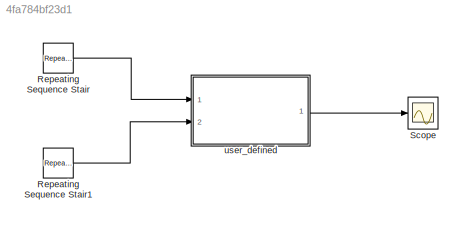
MODEL slx_4fa784bf23d1
KIND model
CONFIG AbsTol = auto
CONFIG FixedStep = auto
CONFIG MaxStep = auto
CONFIG MinStep = auto
CONFIG RelTol = 1e-3
CONFIG SampleTimeConstraint = Unconstrained
CONFIG Solver = FixedStepDiscrete
CONFIG SolverMode = SingleTasking
CONFIG SolverName = FixedStepDiscrete
CONFIG StartTime = 0.0
CONFIG StopTime = 3
BLOCK [Reference] Repeating Sequence Stair  REF=simulink/Sources/Repeating
Sequence
Stair
  Ports = [0, 1]
  SourceBlock = simulink/Sources/Repeating\nSequence\nStair
  SourceType = Repeating Sequence Stair
BLOCK [Reference] Repeating Sequence Stair1  REF=simulink/Sources/Repeating
Sequence
Stair
  Ports = [0, 1]
  SourceBlock = simulink/Sources/Repeating\nSequence\nStair
  SourceType = Repeating Sequence Stair
BLOCK [Scope] Scope
  Ports = [1]
  ScopeSpecificationString = C++SS(StrPVP('Location','[188, 390, 512, 629]'),StrPVP('Open','off'),MxPVP('AxesTitles',24,'struct(''axes1'',''%<SignalLabel>'')'),StrPVP('DataFormat','StructureWithTime'),StrPVP('BlockParamSampleTime','0'),StrPVP('LimitDataPoints','on'),StrPVP('Decimation','1'),StrPVP('BlockParamSampleInput','off'))
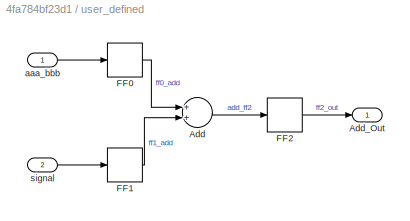
BLOCK [SubSystem] user_defined
  Ports = [2, 1]
  RequestExecContextInheritance = off
  Variant = off
BLOCK [Sum] user_defined/Add
  InputSameDT = off
  OutDataTypeStr = Inherit: Inherit via internal rule
  Ports = [2, 1]
  SaturateOnIntegerOverflow = off
BLOCK [Outport] user_defined/Add_Out
  IconDisplay = Port number
BLOCK [Delay] user_defined/FF0
  DelayLength = 1
  InputPortMap = u0
  Ports = [1, 1]
BLOCK [Delay] user_defined/FF1
  DelayLength = 1
  InputPortMap = u0
  Ports = [1, 1]
BLOCK [Delay] user_defined/FF2
  DelayLength = 1
  InputPortMap = u0
  Ports = [1, 1]
BLOCK [Inport] user_defined/aaa_bbb
  IconDisplay = Port number
BLOCK [Inport] user_defined/signal
  IconDisplay = Port number
  Port = 2
LINE Repeating Sequence Stair1:1 -> user_defined:2
LINE Repeating Sequence Stair:1 -> user_defined:1
LINE user_defined/Add:1 -> user_defined/FF2:1
LINE user_defined/FF0:1 -> user_defined/Add:1
LINE user_defined/FF1:1 -> user_defined/Add:2
LINE user_defined/FF2:1 -> user_defined/Add_Out:1
LINE user_defined/aaa_bbb:1 -> user_defined/FF0:1
LINE user_defined/signal:1 -> user_defined/FF1:1
LINE user_defined:1 -> Scope:1
